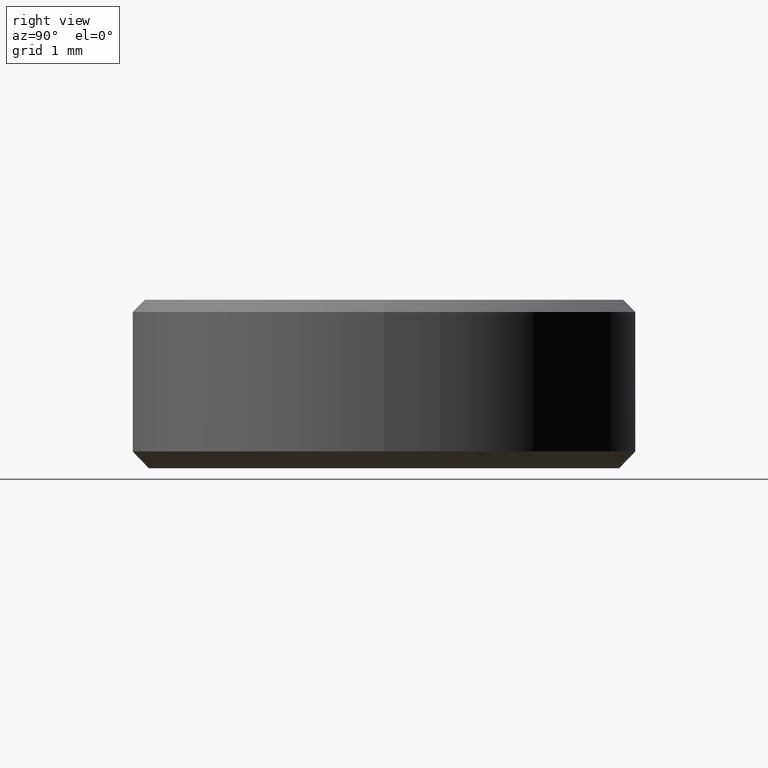
[diagram: clean part render]
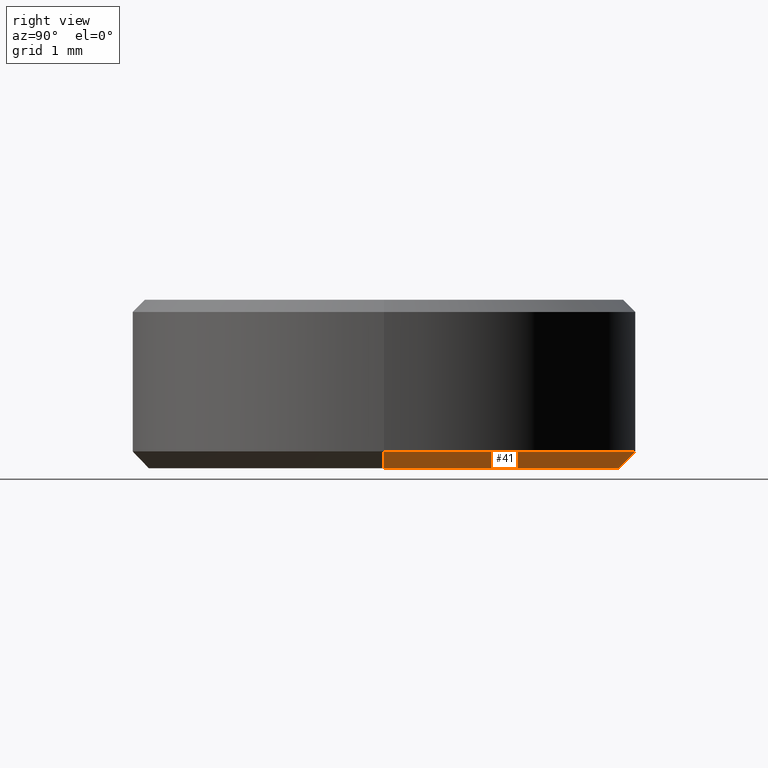
[diagram: same view with one face highlighted and labeled with its STEP entity id]
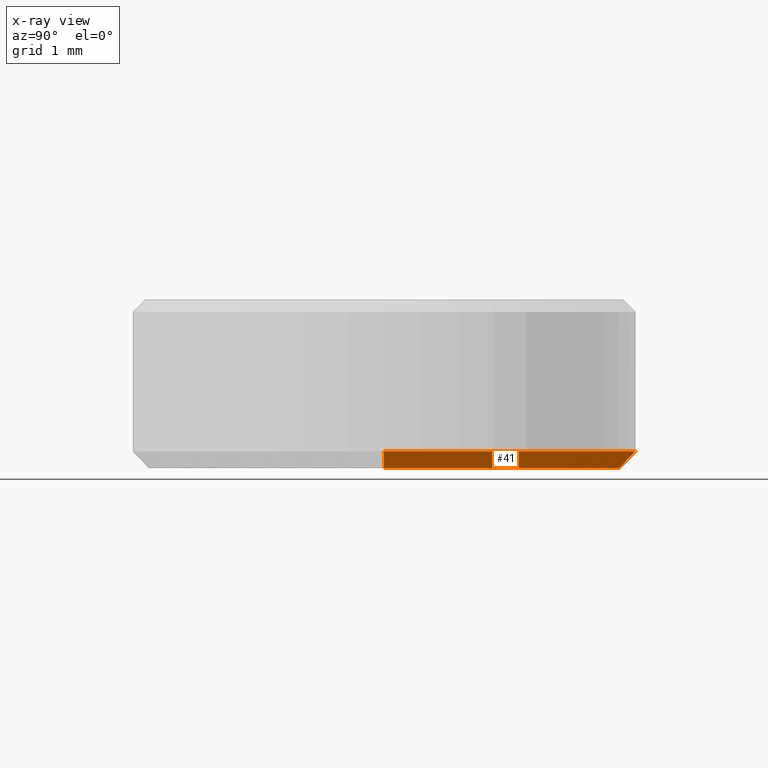
[diagram: x-ray of the same camera — body ghosted, the highlighted face saturated]
A machine part, right view. The second image highlights one B-rep face of the part: STEP entity #41.
The next image is the same camera in x-ray: the body ghosted, the highlighted face saturated — about 0% of this face is hidden behind the body in this view.
In plain terms, the highlighted conical surface has half-angle 45 deg.
Its self-contained STEP definition (entity closure, byte-faithful):
#16 = VECTOR ( 'NONE', #234, 1000.000000000000114 ) ;
#25 = CIRCLE ( 'NONE', #31, 3.000000000000000000 ) ;
#31 = AXIS2_PLACEMENT_3D ( 'NONE', #78, #39, #127 ) ;
#39 = DIRECTION ( 'NONE',  ( -0.000000000000000000, -0.000000000000000000, 1.000000000000000000 ) ) ;
#41 = ADVANCED_FACE ( 'NONE', ( #62 ), #73, .T. ) ;
#45 = LINE ( 'NONE', #236, #16 ) ;
#51 = EDGE_CURVE ( 'NONE', #114, #187, #25, .T. ) ;
#56 = CIRCLE ( 'NONE', #170, 2.799999999999998046 ) ;
#59 = ORIENTED_EDGE ( 'NONE', *, *, #51, .F. ) ;
#62 = FACE_OUTER_BOUND ( 'NONE', #159, .T. ) ;
#73 = CONICAL_SURFACE ( 'NONE', #233, 3.000000000000000000, 0.7853981633974482790 ) ;
#78 = CARTESIAN_POINT ( 'NONE',  ( 0.000000000000000000, 0.000000000000000000, 0.2000000000000020373 ) ) ;
#88 = CARTESIAN_POINT ( 'NONE',  ( 3.000000000000000000, 0.000000000000000000, 0.2000000000000020373 ) ) ;
#96 = CARTESIAN_POINT ( 'NONE',  ( -3.000000000000000000, 3.673940397442059868E-16, 0.2000000000000020373 ) ) ;
#97 = CARTESIAN_POINT ( 'NONE',  ( 0.000000000000000000, 0.000000000000000000, 1.836970198721029934E-16 ) ) ;
#106 = EDGE_CURVE ( 'NONE', #167, #114, #173, .T. ) ;
#114 = VERTEX_POINT ( 'NONE', #150 ) ;
#127 = DIRECTION ( 'NONE',  ( 1.000000000000000000, 0.000000000000000000, 0.000000000000000000 ) ) ;
#128 = ORIENTED_EDGE ( 'NONE', *, *, #137, .T. ) ;
#137 = EDGE_CURVE ( 'NONE', #245, #187, #45, .T. ) ;
#146 = DIRECTION ( 'NONE',  ( -0.000000000000000000, -0.000000000000000000, 1.000000000000000000 ) ) ;
#150 = CARTESIAN_POINT ( 'NONE',  ( 3.000000000000000000, 0.000000000000000000, 0.2000000000000020373 ) ) ;
#157 = CARTESIAN_POINT ( 'NONE',  ( -2.799999999999998046, 3.551475717527323339E-16, 1.836970198721029934E-16 ) ) ;
#159 = EDGE_LOOP ( 'NONE', ( #241, #128, #59, #247 ) ) ;
#165 = DIRECTION ( 'NONE',  ( 0.000000000000000000, 0.000000000000000000, -1.000000000000000000 ) ) ;
#167 = VERTEX_POINT ( 'NONE', #171 ) ;
#170 = AXIS2_PLACEMENT_3D ( 'NONE', #97, #165, #178 ) ;
#171 = CARTESIAN_POINT ( 'NONE',  ( 2.799999999999998046, 0.000000000000000000, 1.836970198721029934E-16 ) ) ;
#172 = DIRECTION ( 'NONE',  ( 0.7071067811865474617, 0.000000000000000000, 0.7071067811865474617 ) ) ;
#173 = LINE ( 'NONE', #88, #179 ) ;
#178 = DIRECTION ( 'NONE',  ( 1.000000000000000000, 0.000000000000000000, 0.000000000000000000 ) ) ;
#179 = VECTOR ( 'NONE', #172, 1000.000000000000114 ) ;
#187 = VERTEX_POINT ( 'NONE', #96 ) ;
#191 = CARTESIAN_POINT ( 'NONE',  ( 0.000000000000000000, 0.000000000000000000, 0.2000000000000020373 ) ) ;
#227 = DIRECTION ( 'NONE',  ( 1.000000000000000000, 0.000000000000000000, 0.000000000000000000 ) ) ;
#233 = AXIS2_PLACEMENT_3D ( 'NONE', #191, #146, #227 ) ;
#234 = DIRECTION ( 'NONE',  ( -0.7071067811865474617, 8.659560562354932858E-17, 0.7071067811865474617 ) ) ;
#236 = CARTESIAN_POINT ( 'NONE',  ( -3.000000000000000000, 3.673940397442059868E-16, 0.2000000000000020373 ) ) ;
#241 = ORIENTED_EDGE ( 'NONE', *, *, #249, .F. ) ;
#245 = VERTEX_POINT ( 'NONE', #157 ) ;
#247 = ORIENTED_EDGE ( 'NONE', *, *, #106, .F. ) ;
#249 = EDGE_CURVE ( 'NONE', #245, #167, #56, .T. ) ;